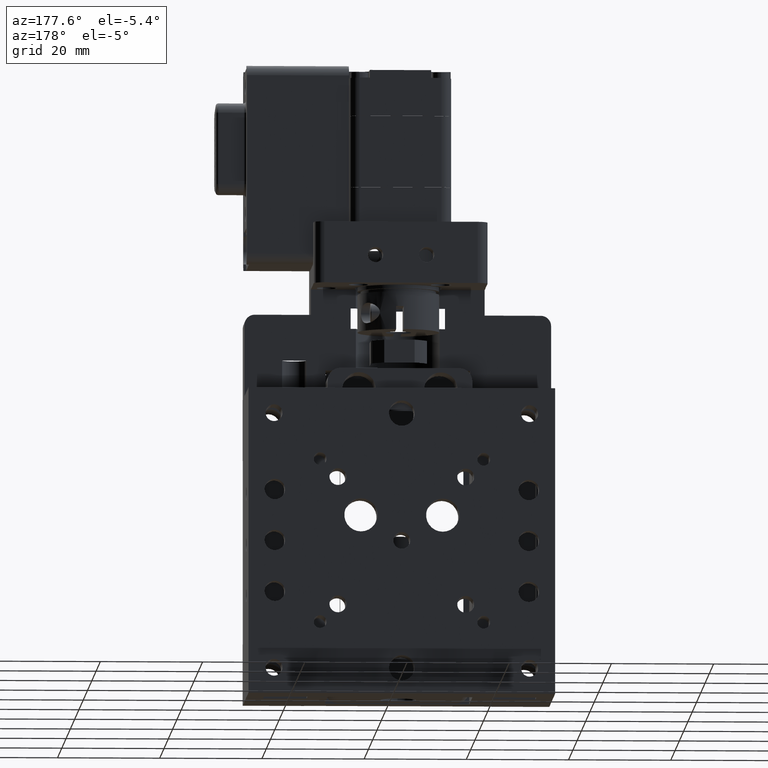
[diagram: clean part render]
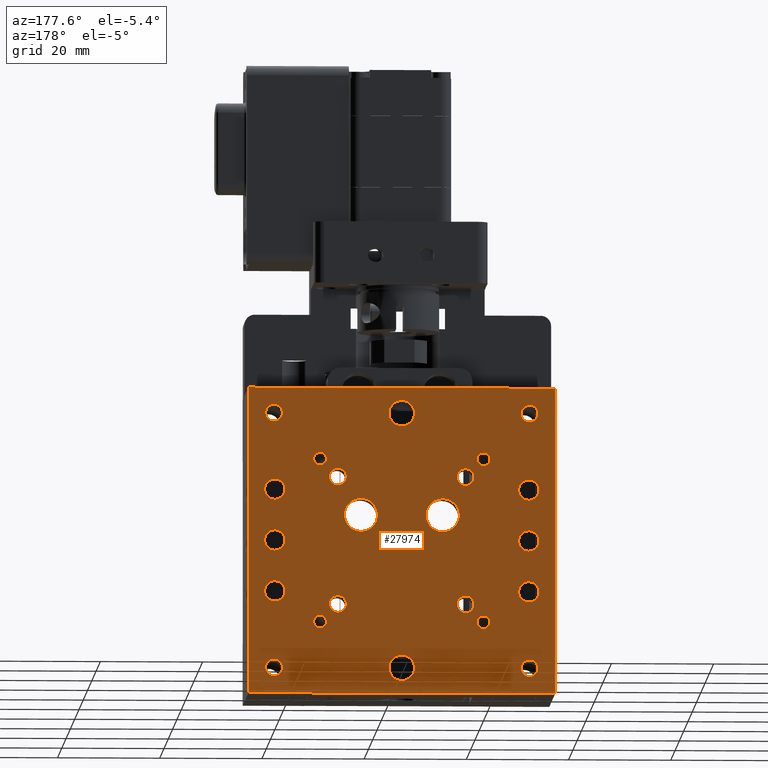
[diagram: same view with one face highlighted and labeled with its STEP entity id]
A machine part, auxiliary view. The second image highlights one B-rep face of the part: STEP entity #27974.
In plain terms, the highlighted planar face has unit normal (0, -1, 0).
Its self-contained STEP definition (entity closure, byte-faithful):
#42 = FACE_BOUND ( 'NONE', #24781, .T. ) ;
#250 = ORIENTED_EDGE ( 'NONE', *, *, #24666, .F. ) ;
#275 = VERTEX_POINT ( 'NONE', #29220 ) ;
#586 = DIRECTION ( 'NONE',  ( 0.0000000000000000000, 0.0000000000000000000, 1.000000000000000000 ) ) ;
#618 = CARTESIAN_POINT ( 'NONE',  ( -27.44171959880754500, 14.10181245401395400, 62.49999999999999300 ) ) ;
#657 = DIRECTION ( 'NONE',  ( 0.0000000000000000000, 0.0000000000000000000, 1.000000000000000000 ) ) ;
#725 = VERTEX_POINT ( 'NONE', #11703 ) ;
#818 = CARTESIAN_POINT ( 'NONE',  ( 9.908280401192477900, 14.10181245401396100, 51.64999999999997700 ) ) ;
#830 = FACE_BOUND ( 'NONE', #17986, .T. ) ;
#890 = CARTESIAN_POINT ( 'NONE',  ( -27.44171959880754500, 14.10181245401395400, 60.50000000000000000 ) ) ;
#987 = VERTEX_POINT ( 'NONE', #30084 ) ;
#1029 = CIRCLE ( 'NONE', #7630, 1.999999999999994900 ) ;
#1058 = ORIENTED_EDGE ( 'NONE', *, *, #32087, .F. ) ;
#1089 = CIRCLE ( 'NONE', #18075, 2.500000000000002200 ) ;
#1184 = EDGE_CURVE ( 'NONE', #1790, #725, #25607, .T. ) ;
#1211 = CARTESIAN_POINT ( 'NONE',  ( 9.908280401192477900, 14.10181245401396100, 48.34999999999999400 ) ) ;
#1388 = AXIS2_PLACEMENT_3D ( 'NONE', #20090, #4738, #22660 ) ;
#1462 = VERTEX_POINT ( 'NONE', #21483 ) ;
#1679 = FACE_BOUND ( 'NONE', #6789, .T. ) ;
#1738 = EDGE_CURVE ( 'NONE', #11139, #18813, #28735, .T. ) ;
#1790 = VERTEX_POINT ( 'NONE', #13770 ) ;
#1911 = DIRECTION ( 'NONE',  ( -1.000000000000000000, -1.156482317317871500E-016, 0.0000000000000000000 ) ) ;
#2009 = DIRECTION ( 'NONE',  ( -0.0000000000000000000, 1.000000000000000000, -0.0000000000000000000 ) ) ;
#2160 = EDGE_CURVE ( 'NONE', #725, #1790, #24310, .T. ) ;
#2200 = VECTOR ( 'NONE', #1911, 1000.000000000000000 ) ;
#2238 = CARTESIAN_POINT ( 'NONE',  ( -27.59171959880753600, 14.10181245401395400, 37.49999999999999300 ) ) ;
#2251 = AXIS2_PLACEMENT_3D ( 'NONE', #3927, #21847, #6535 ) ;
#2493 = FACE_BOUND ( 'NONE', #12200, .T. ) ;
#2575 = CARTESIAN_POINT ( 'NONE',  ( 22.40828040119232900, 14.10181245401396100, 87.50000000000005700 ) ) ;
#2611 = VERTEX_POINT ( 'NONE', #22140 ) ;
#2662 = EDGE_LOOP ( 'NONE', ( #18110, #10220 ) ) ;
#2689 = VERTEX_POINT ( 'NONE', #29743 ) ;
#2891 = DIRECTION ( 'NONE',  ( -0.0000000000000000000, 1.000000000000000000, -0.0000000000000000000 ) ) ;
#3089 = ORIENTED_EDGE ( 'NONE', *, *, #26396, .F. ) ;
#3209 = DIRECTION ( 'NONE',  ( 0.0000000000000000000, 0.0000000000000000000, 1.000000000000000000 ) ) ;
#3305 = DIRECTION ( 'NONE',  ( -0.0000000000000000000, 1.000000000000000000, -0.0000000000000000000 ) ) ;
#3443 = CIRCLE ( 'NONE', #21034, 3.250000000000002700 ) ;
#3541 = DIRECTION ( 'NONE',  ( -0.0000000000000000000, 1.000000000000000000, -0.0000000000000000000 ) ) ;
#3656 = CARTESIAN_POINT ( 'NONE',  ( -27.44171959880754500, 14.10181245401395400, 70.50000000000000000 ) ) ;
#3700 = CIRCLE ( 'NONE', #4108, 2.500000000000002200 ) ;
#3810 = AXIS2_PLACEMENT_3D ( 'NONE', #618, #18583, #3209 ) ;
#3834 = EDGE_CURVE ( 'NONE', #31397, #15848, #22211, .T. ) ;
#3897 = ORIENTED_EDGE ( 'NONE', *, *, #14208, .F. ) ;
#3927 = CARTESIAN_POINT ( 'NONE',  ( 13.40828040119246900, 14.10181245401396000, 78.49999999999998600 ) ) ;
#3953 = EDGE_LOOP ( 'NONE', ( #24756, #18673 ) ) ;
#3992 = CARTESIAN_POINT ( 'NONE',  ( -15.09171959880752400, 14.10181245401395800, 73.34999999999999400 ) ) ;
#4108 = AXIS2_PLACEMENT_3D ( 'NONE', #20084, #4734, #22653 ) ;
#4183 = DIRECTION ( 'NONE',  ( -0.0000000000000000000, 1.000000000000000000, -0.0000000000000000000 ) ) ;
#4399 = LINE ( 'NONE', #8436, #30832 ) ;
#4461 = CIRCLE ( 'NONE', #17149, 3.250000000000002700 ) ;
#4525 = CARTESIAN_POINT ( 'NONE',  ( -27.44171959880754500, 14.10181245401395400, 72.50000000000000000 ) ) ;
#4622 = EDGE_CURVE ( 'NONE', #20340, #16279, #31369, .T. ) ;
#4721 = CARTESIAN_POINT ( 'NONE',  ( 27.40828040119247100, 14.10181245401396100, 92.50000000000000000 ) ) ;
#4734 = DIRECTION ( 'NONE',  ( -0.0000000000000000000, 1.000000000000000000, -0.0000000000000000000 ) ) ;
#4738 = DIRECTION ( 'NONE',  ( -0.0000000000000000000, 1.000000000000000000, -0.0000000000000000000 ) ) ;
#4758 = CARTESIAN_POINT ( 'NONE',  ( -18.59171959880752900, 14.10181245401395600, 78.49999999999998600 ) ) ;
#4765 = CARTESIAN_POINT ( 'NONE',  ( 22.25828040119247600, 14.10181245401396100, 72.50000000000000000 ) ) ;
#4801 = DIRECTION ( 'NONE',  ( 0.0000000000000000000, 0.0000000000000000000, 1.000000000000000000 ) ) ;
#4837 = ORIENTED_EDGE ( 'NONE', *, *, #7867, .F. ) ;
#4857 = EDGE_LOOP ( 'NONE', ( #33028, #14560 ) ) ;
#5162 = DIRECTION ( 'NONE',  ( 0.0000000000000000000, 0.0000000000000000000, 1.000000000000000000 ) ) ;
#5346 = VERTEX_POINT ( 'NONE', #1211 ) ;
#5592 = AXIS2_PLACEMENT_3D ( 'NONE', #2238, #20159, #4801 ) ;
#5990 = DIRECTION ( 'NONE',  ( -0.0000000000000000000, 1.000000000000000000, -0.0000000000000000000 ) ) ;
#6022 = CARTESIAN_POINT ( 'NONE',  ( -27.59171959880753600, 14.10181245401395400, 37.49999999999999300 ) ) ;
#6069 = CARTESIAN_POINT ( 'NONE',  ( -2.591719598807531900, 14.10181245401395800, 87.50000000000000000 ) ) ;
#6072 = FACE_BOUND ( 'NONE', #2662, .T. ) ;
#6295 = CIRCLE ( 'NONE', #33085, 1.649999999999984800 ) ;
#6390 = AXIS2_PLACEMENT_3D ( 'NONE', #26042, #10713, #28594 ) ;
#6421 = CARTESIAN_POINT ( 'NONE',  ( 22.40828040119247400, 14.10181245401396100, 37.50000000000006400 ) ) ;
#6476 = ORIENTED_EDGE ( 'NONE', *, *, #19557, .F. ) ;
#6535 = DIRECTION ( 'NONE',  ( 0.0000000000000000000, 0.0000000000000000000, 1.000000000000000000 ) ) ;
#6647 = AXIS2_PLACEMENT_3D ( 'NONE', #8993, #26884, #11610 ) ;
#6702 = AXIS2_PLACEMENT_3D ( 'NONE', #10133, #28053, #12746 ) ;
#6789 = EDGE_LOOP ( 'NONE', ( #7817, #13097 ) ) ;
#6898 = FACE_BOUND ( 'NONE', #16037, .T. ) ;
#6921 = VERTEX_POINT ( 'NONE', #32409 ) ;
#7084 = ORIENTED_EDGE ( 'NONE', *, *, #31114, .F. ) ;
#7135 = DIRECTION ( 'NONE',  ( -0.0000000000000000000, 1.000000000000000000, -0.0000000000000000000 ) ) ;
#7147 = DIRECTION ( 'NONE',  ( 0.0000000000000000000, 0.0000000000000000000, 1.000000000000000000 ) ) ;
#7324 = ORIENTED_EDGE ( 'NONE', *, *, #20465, .F. ) ;
#7344 = DIRECTION ( 'NONE',  ( 0.0000000000000000000, 0.0000000000000000000, 1.000000000000000000 ) ) ;
#7350 = DIRECTION ( 'NONE',  ( 0.0000000000000000000, 0.0000000000000000000, 1.000000000000000000 ) ) ;
#7369 = CIRCLE ( 'NONE', #1388, 1.649999999999991700 ) ;
#7628 = EDGE_CURVE ( 'NONE', #15848, #27699, #4399, .T. ) ;
#7630 = AXIS2_PLACEMENT_3D ( 'NONE', #21311, #5990, #23897 ) ;
#7673 = FACE_BOUND ( 'NONE', #19466, .T. ) ;
#7731 = CARTESIAN_POINT ( 'NONE',  ( -32.59171959880753600, 14.10181245401395400, 32.49999999999999300 ) ) ;
#7817 = ORIENTED_EDGE ( 'NONE', *, *, #27826, .F. ) ;
#7825 = DIRECTION ( 'NONE',  ( -0.0000000000000000000, 1.000000000000000000, -0.0000000000000000000 ) ) ;
#7867 = EDGE_CURVE ( 'NONE', #12692, #22356, #24850, .T. ) ;
#7875 = ORIENTED_EDGE ( 'NONE', *, *, #30799, .F. ) ;
#7921 = ORIENTED_EDGE ( 'NONE', *, *, #14284, .F. ) ;
#8071 = CARTESIAN_POINT ( 'NONE',  ( 9.908280401192477900, 14.10181245401396100, 76.64999999999996300 ) ) ;
#8160 = EDGE_CURVE ( 'NONE', #11820, #22174, #21581, .T. ) ;
#8354 = CARTESIAN_POINT ( 'NONE',  ( 13.40828040119246900, 14.10181245401396000, 78.49999999999998600 ) ) ;
#8408 = CARTESIAN_POINT ( 'NONE',  ( 9.908280401192477900, 14.10181245401396100, 49.99999999999998600 ) ) ;
#8436 = CARTESIAN_POINT ( 'NONE',  ( -32.59171959880753600, 14.10181245401395400, 92.50000000000000000 ) ) ;
#8457 = VERTEX_POINT ( 'NONE', #3656 ) ;
#8480 = VERTEX_POINT ( 'NONE', #3992 ) ;
#8482 = EDGE_CURVE ( 'NONE', #22174, #11820, #15203, .T. ) ;
#8484 = FACE_BOUND ( 'NONE', #11452, .T. ) ;
#8597 = DIRECTION ( 'NONE',  ( 0.0000000000000000000, 0.0000000000000000000, 1.000000000000000000 ) ) ;
#8661 = DIRECTION ( 'NONE',  ( 0.0000000000000000000, 0.0000000000000000000, 1.000000000000000000 ) ) ;
#8794 = CARTESIAN_POINT ( 'NONE',  ( 9.908280401192477900, 14.10181245401396100, 73.34999999999999400 ) ) ;
#8876 = CARTESIAN_POINT ( 'NONE',  ( -2.591719598807531900, 14.10181245401395800, 37.49999999999999300 ) ) ;
#8993 = CARTESIAN_POINT ( 'NONE',  ( 9.908280401192477900, 14.10181245401396100, 74.99999999999998600 ) ) ;
#8994 = DIRECTION ( 'NONE',  ( 0.0000000000000000000, 0.0000000000000000000, 1.000000000000000000 ) ) ;
#9371 = CARTESIAN_POINT ( 'NONE',  ( -2.591719598807531400, 14.10181245401395800, 84.99999999999998600 ) ) ;
#9633 = DIRECTION ( 'NONE',  ( -0.0000000000000000000, 1.000000000000000000, -0.0000000000000000000 ) ) ;
#9673 = EDGE_CURVE ( 'NONE', #16242, #27699, #22627, .T. ) ;
#9910 = ORIENTED_EDGE ( 'NONE', *, *, #27632, .F. ) ;
#9951 = EDGE_CURVE ( 'NONE', #2611, #21721, #22165, .T. ) ;
#10058 = CIRCLE ( 'NONE', #31709, 1.649999999999998600 ) ;
#10060 = AXIS2_PLACEMENT_3D ( 'NONE', #12976, #30821, #15573 ) ;
#10108 = FACE_BOUND ( 'NONE', #18730, .T. ) ;
#10133 = CARTESIAN_POINT ( 'NONE',  ( -27.44171959880754500, 14.10181245401395400, 52.49999999999999300 ) ) ;
#10220 = ORIENTED_EDGE ( 'NONE', *, *, #1738, .F. ) ;
#10288 = VERTEX_POINT ( 'NONE', #28328 ) ;
#10653 = EDGE_CURVE ( 'NONE', #10931, #23525, #20101, .T. ) ;
#10713 = DIRECTION ( 'NONE',  ( -0.0000000000000000000, 1.000000000000000000, -0.0000000000000000000 ) ) ;
#10853 = CARTESIAN_POINT ( 'NONE',  ( 22.25828040119247600, 14.10181245401396100, 74.50000000000000000 ) ) ;
#10915 = EDGE_LOOP ( 'NONE', ( #22429, #28908 ) ) ;
#10929 = DIRECTION ( 'NONE',  ( 0.0000000000000000000, 0.0000000000000000000, 1.000000000000000000 ) ) ;
#10931 = VERTEX_POINT ( 'NONE', #21329 ) ;
#10993 = DIRECTION ( 'NONE',  ( 0.0000000000000000000, 0.0000000000000000000, 1.000000000000000000 ) ) ;
#10994 = EDGE_LOOP ( 'NONE', ( #7875, #30354 ) ) ;
#11043 = DIRECTION ( 'NONE',  ( -0.0000000000000000000, 1.000000000000000000, -0.0000000000000000000 ) ) ;
#11048 = CARTESIAN_POINT ( 'NONE',  ( -18.59171959880752900, 14.10181245401395600, 45.24999999999999300 ) ) ;
#11139 = VERTEX_POINT ( 'NONE', #16980 ) ;
#11277 = CIRCLE ( 'NONE', #31923, 1.649999999999998600 ) ;
#11279 = ORIENTED_EDGE ( 'NONE', *, *, #9673, .T. ) ;
#11341 = CIRCLE ( 'NONE', #28898, 1.649999999999991700 ) ;
#11452 = EDGE_LOOP ( 'NONE', ( #3089, #250 ) ) ;
#11462 = CARTESIAN_POINT ( 'NONE',  ( -2.591719598807531900, 14.10181245401396000, 62.49999999999999300 ) ) ;
#11469 = DIRECTION ( 'NONE',  ( 0.0000000000000000000, 0.0000000000000000000, 1.000000000000000000 ) ) ;
#11511 = CARTESIAN_POINT ( 'NONE',  ( -10.59171959880753300, 14.10181245401395600, 70.75000000000000000 ) ) ;
#11532 = EDGE_LOOP ( 'NONE', ( #1058, #31496 ) ) ;
#11610 = DIRECTION ( 'NONE',  ( 0.0000000000000000000, 0.0000000000000000000, 1.000000000000000000 ) ) ;
#11684 = CARTESIAN_POINT ( 'NONE',  ( 27.40828040119247100, 14.10181245401396100, 92.50000000000000000 ) ) ;
#11703 = CARTESIAN_POINT ( 'NONE',  ( 22.25828040119247600, 14.10181245401396100, 54.49999999999999300 ) ) ;
#11757 = VECTOR ( 'NONE', #23618, 1000.000000000000000 ) ;
#11781 = CARTESIAN_POINT ( 'NONE',  ( 22.40828040119232900, 14.10181245401396100, 87.50000000000005700 ) ) ;
#11801 = VERTEX_POINT ( 'NONE', #818 ) ;
#11820 = VERTEX_POINT ( 'NONE', #18812 ) ;
#11831 = ORIENTED_EDGE ( 'NONE', *, *, #30626, .T. ) ;
#11993 = EDGE_CURVE ( 'NONE', #17913, #18374, #6295, .T. ) ;
#12153 = EDGE_CURVE ( 'NONE', #16748, #275, #26298, .T. ) ;
#12162 = CARTESIAN_POINT ( 'NONE',  ( -15.09171959880752400, 14.10181245401395800, 74.99999999999998600 ) ) ;
#12180 = VERTEX_POINT ( 'NONE', #15011 ) ;
#12192 = CARTESIAN_POINT ( 'NONE',  ( 22.25828040119247600, 14.10181245401396100, 52.49999999999999300 ) ) ;
#12200 = EDGE_LOOP ( 'NONE', ( #18107, #25539 ) ) ;
#12471 = AXIS2_PLACEMENT_3D ( 'NONE', #17328, #2009, #19918 ) ;
#12599 = CIRCLE ( 'NONE', #16694, 1.999999999999994900 ) ;
#12662 = DIRECTION ( 'NONE',  ( -0.0000000000000000000, 1.000000000000000000, -0.0000000000000000000 ) ) ;
#12692 = VERTEX_POINT ( 'NONE', #30020 ) ;
#12741 = AXIS2_PLACEMENT_3D ( 'NONE', #29930, #14646, #32501 ) ;
#12746 = DIRECTION ( 'NONE',  ( 0.0000000000000000000, 0.0000000000000000000, 1.000000000000000000 ) ) ;
#12749 = VERTEX_POINT ( 'NONE', #32915 ) ;
#12901 = CIRCLE ( 'NONE', #26857, 2.500000000000002200 ) ;
#12931 = FACE_BOUND ( 'NONE', #4857, .T. ) ;
#12961 = DIRECTION ( 'NONE',  ( -0.0000000000000000000, 1.000000000000000000, -0.0000000000000000000 ) ) ;
#12975 = DIRECTION ( 'NONE',  ( -0.0000000000000000000, 1.000000000000000000, -0.0000000000000000000 ) ) ;
#12976 = CARTESIAN_POINT ( 'NONE',  ( -27.59171959880753600, 14.10181245401395400, 87.50000000000000000 ) ) ;
#13008 = CARTESIAN_POINT ( 'NONE',  ( -15.09171959880752400, 14.10181245401395800, 76.64999999999996300 ) ) ;
#13061 = VERTEX_POINT ( 'NONE', #15635 ) ;
#13068 = EDGE_LOOP ( 'NONE', ( #26187, #6476 ) ) ;
#13097 = ORIENTED_EDGE ( 'NONE', *, *, #23845, .F. ) ;
#13131 = CARTESIAN_POINT ( 'NONE',  ( 22.40828040119247400, 14.10181245401396100, 39.15000000000006300 ) ) ;
#13215 = CARTESIAN_POINT ( 'NONE',  ( 9.908280401192477900, 14.10181245401396100, 49.99999999999998600 ) ) ;
#13246 = DIRECTION ( 'NONE',  ( -0.0000000000000000000, 1.000000000000000000, -0.0000000000000000000 ) ) ;
#13556 = DIRECTION ( 'NONE',  ( -0.0000000000000000000, 1.000000000000000000, -0.0000000000000000000 ) ) ;
#13647 = CARTESIAN_POINT ( 'NONE',  ( 13.40828040119246900, 14.10181245401396000, 79.74999999999998600 ) ) ;
#13730 = FACE_BOUND ( 'NONE', #17832, .T. ) ;
#13770 = CARTESIAN_POINT ( 'NONE',  ( 22.25828040119247600, 14.10181245401396100, 50.49999999999998600 ) ) ;
#13884 = CARTESIAN_POINT ( 'NONE',  ( -15.09171959880752400, 14.10181245401395800, 48.34999999999999400 ) ) ;
#14010 = CARTESIAN_POINT ( 'NONE',  ( 13.40828040119246900, 14.10181245401396000, 46.49999999999999300 ) ) ;
#14064 = DIRECTION ( 'NONE',  ( 0.0000000000000000000, 0.0000000000000000000, 1.000000000000000000 ) ) ;
#14155 = EDGE_CURVE ( 'NONE', #28418, #31980, #31765, .T. ) ;
#14159 = PLANE ( 'NONE',  #30320 ) ;
#14208 = EDGE_CURVE ( 'NONE', #19969, #13061, #15007, .T. ) ;
#14230 = EDGE_CURVE ( 'NONE', #32608, #6921, #12599, .T. ) ;
#14269 = DIRECTION ( 'NONE',  ( 1.000000000000000000, 1.156482317317871500E-016, 0.0000000000000000000 ) ) ;
#14284 = EDGE_CURVE ( 'NONE', #20763, #22984, #29752, .T. ) ;
#14367 = DIRECTION ( 'NONE',  ( 0.0000000000000000000, 0.0000000000000000000, 1.000000000000000000 ) ) ;
#14492 = DIRECTION ( 'NONE',  ( -0.0000000000000000000, 1.000000000000000000, -0.0000000000000000000 ) ) ;
#14540 = FACE_BOUND ( 'NONE', #10994, .T. ) ;
#14560 = ORIENTED_EDGE ( 'NONE', *, *, #20100, .F. ) ;
#14646 = DIRECTION ( 'NONE',  ( -0.0000000000000000000, 1.000000000000000000, -0.0000000000000000000 ) ) ;
#14687 = ORIENTED_EDGE ( 'NONE', *, *, #32240, .F. ) ;
#14738 = DIRECTION ( 'NONE',  ( 0.0000000000000000000, 0.0000000000000000000, 1.000000000000000000 ) ) ;
#14764 = ORIENTED_EDGE ( 'NONE', *, *, #31205, .F. ) ;
#14776 = DIRECTION ( 'NONE',  ( 0.0000000000000000000, 0.0000000000000000000, 1.000000000000000000 ) ) ;
#14862 = EDGE_CURVE ( 'NONE', #12180, #10288, #11277, .T. ) ;
#15007 = CIRCLE ( 'NONE', #6390, 3.250000000000002700 ) ;
#15011 = CARTESIAN_POINT ( 'NONE',  ( -27.59171959880753600, 14.10181245401395400, 89.14999999999999100 ) ) ;
#15145 = VERTEX_POINT ( 'NONE', #25105 ) ;
#15148 = AXIS2_PLACEMENT_3D ( 'NONE', #28833, #13556, #31399 ) ;
#15203 = CIRCLE ( 'NONE', #29493, 1.649999999999998600 ) ;
#15249 = CARTESIAN_POINT ( 'NONE',  ( -10.59171959880753300, 14.10181245401395600, 67.49999999999998600 ) ) ;
#15264 = DIRECTION ( 'NONE',  ( -0.0000000000000000000, 1.000000000000000000, -0.0000000000000000000 ) ) ;
#15276 = CIRCLE ( 'NONE', #10060, 1.649999999999998600 ) ;
#15329 = AXIS2_PLACEMENT_3D ( 'NONE', #4525, #22463, #7147 ) ;
#15335 = EDGE_CURVE ( 'NONE', #21721, #2611, #10058, .T. ) ;
#15341 = CARTESIAN_POINT ( 'NONE',  ( -10.59171959880753300, 14.10181245401395600, 64.24999999999998600 ) ) ;
#15353 = FACE_BOUND ( 'NONE', #22278, .T. ) ;
#15463 = EDGE_CURVE ( 'NONE', #8480, #23311, #29248, .T. ) ;
#15573 = DIRECTION ( 'NONE',  ( 0.0000000000000000000, 0.0000000000000000000, 1.000000000000000000 ) ) ;
#15635 = CARTESIAN_POINT ( 'NONE',  ( 5.408280401192471700, 14.10181245401396000, 64.24999999999998600 ) ) ;
#15705 = ORIENTED_EDGE ( 'NONE', *, *, #23065, .F. ) ;
#15777 = DIRECTION ( 'NONE',  ( 0.0000000000000000000, 0.0000000000000000000, 1.000000000000000000 ) ) ;
#15848 = VERTEX_POINT ( 'NONE', #16155 ) ;
#16001 = DIRECTION ( 'NONE',  ( -0.0000000000000000000, 1.000000000000000000, -0.0000000000000000000 ) ) ;
#16037 = EDGE_LOOP ( 'NONE', ( #22076, #29497 ) ) ;
#16072 = DIRECTION ( 'NONE',  ( -0.0000000000000000000, 1.000000000000000000, -0.0000000000000000000 ) ) ;
#16119 = CARTESIAN_POINT ( 'NONE',  ( -27.44171959880754500, 14.10181245401395400, 50.49999999999998600 ) ) ;
#16141 = CARTESIAN_POINT ( 'NONE',  ( -18.59171959880752900, 14.10181245401395600, 79.74999999999998600 ) ) ;
#16155 = CARTESIAN_POINT ( 'NONE',  ( -32.59171959880753600, 14.10181245401395400, 92.50000000000000000 ) ) ;
#16235 = CARTESIAN_POINT ( 'NONE',  ( 27.40828040119247100, 14.10181245401396100, 32.49999999999999300 ) ) ;
#16242 = VERTEX_POINT ( 'NONE', #16235 ) ;
#16279 = VERTEX_POINT ( 'NONE', #13884 ) ;
#16369 = CARTESIAN_POINT ( 'NONE',  ( -27.59171959880753600, 14.10181245401395400, 35.84999999999999400 ) ) ;
#16413 = CARTESIAN_POINT ( 'NONE',  ( 22.25828040119247600, 14.10181245401396100, 64.49999999999998600 ) ) ;
#16454 = AXIS2_PLACEMENT_3D ( 'NONE', #18915, #3541, #21455 ) ;
#16474 = CIRCLE ( 'NONE', #20457, 1.250000000000001100 ) ;
#16547 = CIRCLE ( 'NONE', #18969, 1.649999999999991700 ) ;
#16553 = DIRECTION ( 'NONE',  ( 0.0000000000000000000, 0.0000000000000000000, 1.000000000000000000 ) ) ;
#16565 = AXIS2_PLACEMENT_3D ( 'NONE', #14010, #31854, #16553 ) ;
#16670 = EDGE_CURVE ( 'NONE', #987, #28828, #18674, .T. ) ;
#16694 = AXIS2_PLACEMENT_3D ( 'NONE', #31261, #16001, #586 ) ;
#16748 = VERTEX_POINT ( 'NONE', #10853 ) ;
#16980 = CARTESIAN_POINT ( 'NONE',  ( -18.59171959880752900, 14.10181245401395600, 77.24999999999998600 ) ) ;
#17110 = EDGE_CURVE ( 'NONE', #28188, #8457, #20853, .T. ) ;
#17149 = AXIS2_PLACEMENT_3D ( 'NONE', #29779, #14492, #32360 ) ;
#17328 = CARTESIAN_POINT ( 'NONE',  ( -15.09171959880752400, 14.10181245401395800, 74.99999999999998600 ) ) ;
#17335 = ORIENTED_EDGE ( 'NONE', *, *, #14230, .F. ) ;
#17343 = EDGE_CURVE ( 'NONE', #22356, #12692, #16474, .T. ) ;
#17530 = VERTEX_POINT ( 'NONE', #11511 ) ;
#17640 = CIRCLE ( 'NONE', #30807, 1.649999999999998600 ) ;
#17776 = DIRECTION ( 'NONE',  ( 0.0000000000000000000, 0.0000000000000000000, 1.000000000000000000 ) ) ;
#17832 = EDGE_LOOP ( 'NONE', ( #27849, #22163 ) ) ;
#17913 = VERTEX_POINT ( 'NONE', #8794 ) ;
#17986 = EDGE_LOOP ( 'NONE', ( #15705, #18747 ) ) ;
#18075 = AXIS2_PLACEMENT_3D ( 'NONE', #6069, #23999, #8661 ) ;
#18107 = ORIENTED_EDGE ( 'NONE', *, *, #12153, .F. ) ;
#18110 = ORIENTED_EDGE ( 'NONE', *, *, #32291, .F. ) ;
#18262 = CARTESIAN_POINT ( 'NONE',  ( 13.40828040119246900, 14.10181245401396000, 46.49999999999999300 ) ) ;
#18374 = VERTEX_POINT ( 'NONE', #8071 ) ;
#18567 = CARTESIAN_POINT ( 'NONE',  ( -27.44171959880754500, 14.10181245401395400, 54.49999999999999300 ) ) ;
#18583 = DIRECTION ( 'NONE',  ( -0.0000000000000000000, 1.000000000000000000, -0.0000000000000000000 ) ) ;
#18673 = ORIENTED_EDGE ( 'NONE', *, *, #32351, .F. ) ;
#18674 = CIRCLE ( 'NONE', #29865, 1.250000000000001100 ) ;
#18676 = CARTESIAN_POINT ( 'NONE',  ( 22.40828040119247400, 14.10181245401396100, 37.50000000000006400 ) ) ;
#18697 = ORIENTED_EDGE ( 'NONE', *, *, #7628, .F. ) ;
#18730 = EDGE_LOOP ( 'NONE', ( #29394, #30187 ) ) ;
#18747 = ORIENTED_EDGE ( 'NONE', *, *, #22527, .F. ) ;
#18812 = CARTESIAN_POINT ( 'NONE',  ( 22.40828040119232900, 14.10181245401396100, 89.15000000000006300 ) ) ;
#18813 = VERTEX_POINT ( 'NONE', #16141 ) ;
#18915 = CARTESIAN_POINT ( 'NONE',  ( -2.591719598807531900, 14.10181245401396000, 62.49999999999999300 ) ) ;
#18959 = CIRCLE ( 'NONE', #12741, 2.500000000000002200 ) ;
#18969 = AXIS2_PLACEMENT_3D ( 'NONE', #8408, #26323, #10993 ) ;
#19064 = ORIENTED_EDGE ( 'NONE', *, *, #15463, .F. ) ;
#19071 = EDGE_CURVE ( 'NONE', #27105, #17530, #30575, .T. ) ;
#19437 = ORIENTED_EDGE ( 'NONE', *, *, #11993, .F. ) ;
#19466 = EDGE_LOOP ( 'NONE', ( #3897, #14687 ) ) ;
#19477 = ORIENTED_EDGE ( 'NONE', *, *, #2160, .F. ) ;
#19552 = ORIENTED_EDGE ( 'NONE', *, *, #9951, .F. ) ;
#19557 = EDGE_CURVE ( 'NONE', #16279, #20340, #7369, .T. ) ;
#19578 = CARTESIAN_POINT ( 'NONE',  ( 9.908280401192477900, 14.10181245401396100, 74.99999999999998600 ) ) ;
#19735 = FACE_BOUND ( 'NONE', #11532, .T. ) ;
#19918 = DIRECTION ( 'NONE',  ( 0.0000000000000000000, 0.0000000000000000000, 1.000000000000000000 ) ) ;
#19942 = ORIENTED_EDGE ( 'NONE', *, *, #3834, .F. ) ;
#19969 = VERTEX_POINT ( 'NONE', #27222 ) ;
#20084 = CARTESIAN_POINT ( 'NONE',  ( -2.591719598807531900, 14.10181245401395800, 87.50000000000000000 ) ) ;
#20090 = CARTESIAN_POINT ( 'NONE',  ( -15.09171959880752400, 14.10181245401395800, 49.99999999999998600 ) ) ;
#20100 = EDGE_CURVE ( 'NONE', #25057, #1462, #30030, .T. ) ;
#20101 = CIRCLE ( 'NONE', #5592, 1.649999999999998600 ) ;
#20159 = DIRECTION ( 'NONE',  ( -0.0000000000000000000, 1.000000000000000000, -0.0000000000000000000 ) ) ;
#20227 = EDGE_CURVE ( 'NONE', #23525, #10931, #17640, .T. ) ;
#20340 = VERTEX_POINT ( 'NONE', #21682 ) ;
#20457 = AXIS2_PLACEMENT_3D ( 'NONE', #8354, #26255, #10929 ) ;
#20465 = EDGE_CURVE ( 'NONE', #23311, #8480, #29593, .T. ) ;
#20491 = DIRECTION ( 'NONE',  ( -0.0000000000000000000, 1.000000000000000000, -0.0000000000000000000 ) ) ;
#20499 = FACE_BOUND ( 'NONE', #10915, .T. ) ;
#20650 = EDGE_CURVE ( 'NONE', #10288, #12180, #15276, .T. ) ;
#20663 = CIRCLE ( 'NONE', #31326, 1.250000000000001100 ) ;
#20746 = ORIENTED_EDGE ( 'NONE', *, *, #25017, .F. ) ;
#20763 = VERTEX_POINT ( 'NONE', #28922 ) ;
#20809 = CARTESIAN_POINT ( 'NONE',  ( 27.40828040119247100, 14.10181245401396100, 92.50000000000000000 ) ) ;
#20812 = DIRECTION ( 'NONE',  ( 0.0000000000000000000, 0.0000000000000000000, 1.000000000000000000 ) ) ;
#20853 = CIRCLE ( 'NONE', #21084, 2.000000000000001800 ) ;
#20884 = EDGE_LOOP ( 'NONE', ( #24246, #4837 ) ) ;
#21034 = AXIS2_PLACEMENT_3D ( 'NONE', #22458, #7135, #25045 ) ;
#21084 = AXIS2_PLACEMENT_3D ( 'NONE', #27965, #12662, #30495 ) ;
#21220 = DIRECTION ( 'NONE',  ( 0.0000000000000000000, 0.0000000000000000000, 1.000000000000000000 ) ) ;
#21285 = FACE_BOUND ( 'NONE', #13068, .T. ) ;
#21311 = CARTESIAN_POINT ( 'NONE',  ( 22.25828040119247600, 14.10181245401396100, 62.49999999999999300 ) ) ;
#21329 = CARTESIAN_POINT ( 'NONE',  ( -27.59171959880753600, 14.10181245401395400, 39.14999999999999100 ) ) ;
#21394 = VECTOR ( 'NONE', #28531, 1000.000000000000000 ) ;
#21455 = DIRECTION ( 'NONE',  ( 0.0000000000000000000, 0.0000000000000000000, 1.000000000000000000 ) ) ;
#21483 = CARTESIAN_POINT ( 'NONE',  ( -18.59171959880752900, 14.10181245401395600, 47.74999999999999300 ) ) ;
#21581 = CIRCLE ( 'NONE', #30748, 1.649999999999998600 ) ;
#21682 = CARTESIAN_POINT ( 'NONE',  ( -15.09171959880752400, 14.10181245401395800, 51.64999999999997700 ) ) ;
#21721 = VERTEX_POINT ( 'NONE', #13131 ) ;
#21847 = DIRECTION ( 'NONE',  ( -0.0000000000000000000, 1.000000000000000000, -0.0000000000000000000 ) ) ;
#22076 = ORIENTED_EDGE ( 'NONE', *, *, #8160, .F. ) ;
#22100 = FACE_BOUND ( 'NONE', #25894, .T. ) ;
#22117 = DIRECTION ( 'NONE',  ( 0.0000000000000000000, 0.0000000000000000000, 1.000000000000000000 ) ) ;
#22140 = CARTESIAN_POINT ( 'NONE',  ( 22.40828040119247400, 14.10181245401396100, 35.85000000000006500 ) ) ;
#22163 = ORIENTED_EDGE ( 'NONE', *, *, #20650, .F. ) ;
#22165 = CIRCLE ( 'NONE', #28728, 1.649999999999998600 ) ;
#22174 = VERTEX_POINT ( 'NONE', #25616 ) ;
#22211 = LINE ( 'NONE', #20809, #21394 ) ;
#22278 = EDGE_LOOP ( 'NONE', ( #19477, #27288 ) ) ;
#22320 = CARTESIAN_POINT ( 'NONE',  ( 13.40828040119246900, 14.10181245401396000, 47.74999999999999300 ) ) ;
#22356 = VERTEX_POINT ( 'NONE', #13647 ) ;
#22429 = ORIENTED_EDGE ( 'NONE', *, *, #10653, .F. ) ;
#22458 = CARTESIAN_POINT ( 'NONE',  ( 5.408280401192471700, 14.10181245401396000, 67.49999999999998600 ) ) ;
#22463 = DIRECTION ( 'NONE',  ( -0.0000000000000000000, 1.000000000000000000, -0.0000000000000000000 ) ) ;
#22527 = EDGE_CURVE ( 'NONE', #26247, #2689, #18959, .T. ) ;
#22627 = LINE ( 'NONE', #32658, #2200 ) ;
#22653 = DIRECTION ( 'NONE',  ( 0.0000000000000000000, 0.0000000000000000000, 1.000000000000000000 ) ) ;
#22660 = DIRECTION ( 'NONE',  ( 0.0000000000000000000, 0.0000000000000000000, 1.000000000000000000 ) ) ;
#22679 = DIRECTION ( 'NONE',  ( -0.0000000000000000000, 1.000000000000000000, -0.0000000000000000000 ) ) ;
#22685 = DIRECTION ( 'NONE',  ( -0.0000000000000000000, 1.000000000000000000, -0.0000000000000000000 ) ) ;
#22917 = FACE_BOUND ( 'NONE', #3953, .T. ) ;
#22984 = VERTEX_POINT ( 'NONE', #16413 ) ;
#23065 = EDGE_CURVE ( 'NONE', #2689, #26247, #12901, .T. ) ;
#23164 = CARTESIAN_POINT ( 'NONE',  ( -18.59171959880752900, 14.10181245401395600, 46.49999999999999300 ) ) ;
#23311 = VERTEX_POINT ( 'NONE', #13008 ) ;
#23411 = ORIENTED_EDGE ( 'NONE', *, *, #32605, .F. ) ;
#23525 = VERTEX_POINT ( 'NONE', #16369 ) ;
#23529 = CIRCLE ( 'NONE', #16454, 1.649999999999991700 ) ;
#23618 = DIRECTION ( 'NONE',  ( -0.0000000000000000000, -0.0000000000000000000, -1.000000000000000000 ) ) ;
#23845 = EDGE_CURVE ( 'NONE', #5346, #11801, #29675, .T. ) ;
#23860 = EDGE_LOOP ( 'NONE', ( #7324, #19064 ) ) ;
#23897 = DIRECTION ( 'NONE',  ( 0.0000000000000000000, 0.0000000000000000000, 1.000000000000000000 ) ) ;
#23940 = DIRECTION ( 'NONE',  ( -0.0000000000000000000, 1.000000000000000000, -0.0000000000000000000 ) ) ;
#23999 = DIRECTION ( 'NONE',  ( -0.0000000000000000000, 1.000000000000000000, -0.0000000000000000000 ) ) ;
#24246 = ORIENTED_EDGE ( 'NONE', *, *, #17343, .F. ) ;
#24278 = VERTEX_POINT ( 'NONE', #32568 ) ;
#24310 = CIRCLE ( 'NONE', #29243, 2.000000000000001800 ) ;
#24343 = CIRCLE ( 'NONE', #31207, 2.000000000000001800 ) ;
#24347 = DIRECTION ( 'NONE',  ( -0.0000000000000000000, 1.000000000000000000, -0.0000000000000000000 ) ) ;
#24666 = EDGE_CURVE ( 'NONE', #24278, #12749, #23529, .T. ) ;
#24756 = ORIENTED_EDGE ( 'NONE', *, *, #14155, .F. ) ;
#24760 = ORIENTED_EDGE ( 'NONE', *, *, #15335, .F. ) ;
#24781 = EDGE_LOOP ( 'NONE', ( #24760, #19552 ) ) ;
#24850 = CIRCLE ( 'NONE', #2251, 1.250000000000001100 ) ;
#24858 = EDGE_CURVE ( 'NONE', #275, #16748, #24343, .T. ) ;
#24946 = CARTESIAN_POINT ( 'NONE',  ( -15.09171959880752400, 14.10181245401395800, 49.99999999999998600 ) ) ;
#25017 = EDGE_CURVE ( 'NONE', #22984, #20763, #1029, .T. ) ;
#25045 = DIRECTION ( 'NONE',  ( 0.0000000000000000000, 0.0000000000000000000, 1.000000000000000000 ) ) ;
#25057 = VERTEX_POINT ( 'NONE', #11048 ) ;
#25105 = CARTESIAN_POINT ( 'NONE',  ( -2.591719598807531900, 14.10181245401395800, 90.00000000000000000 ) ) ;
#25239 = VERTEX_POINT ( 'NONE', #9371 ) ;
#25413 = AXIS2_PLACEMENT_3D ( 'NONE', #13215, #31060, #15777 ) ;
#25539 = ORIENTED_EDGE ( 'NONE', *, *, #24858, .F. ) ;
#25607 = CIRCLE ( 'NONE', #31335, 2.000000000000001800 ) ;
#25616 = CARTESIAN_POINT ( 'NONE',  ( 22.40828040119232900, 14.10181245401396100, 85.85000000000006500 ) ) ;
#25717 = FACE_BOUND ( 'NONE', #28566, .T. ) ;
#25753 = DIRECTION ( 'NONE',  ( 0.0000000000000000000, 0.0000000000000000000, 1.000000000000000000 ) ) ;
#25894 = EDGE_LOOP ( 'NONE', ( #20746, #7921 ) ) ;
#25907 = AXIS2_PLACEMENT_3D ( 'NONE', #28273, #12975, #30819 ) ;
#25927 = CIRCLE ( 'NONE', #16565, 1.250000000000001100 ) ;
#26042 = CARTESIAN_POINT ( 'NONE',  ( 5.408280401192471700, 14.10181245401396000, 67.49999999999998600 ) ) ;
#26187 = ORIENTED_EDGE ( 'NONE', *, *, #4622, .F. ) ;
#26247 = VERTEX_POINT ( 'NONE', #29402 ) ;
#26255 = DIRECTION ( 'NONE',  ( -0.0000000000000000000, 1.000000000000000000, -0.0000000000000000000 ) ) ;
#26298 = CIRCLE ( 'NONE', #30719, 2.000000000000001800 ) ;
#26323 = DIRECTION ( 'NONE',  ( -0.0000000000000000000, 1.000000000000000000, -0.0000000000000000000 ) ) ;
#26371 = CARTESIAN_POINT ( 'NONE',  ( 22.25828040119247600, 14.10181245401396100, 62.49999999999999300 ) ) ;
#26396 = EDGE_CURVE ( 'NONE', #12749, #24278, #11341, .T. ) ;
#26507 = FACE_BOUND ( 'NONE', #20884, .T. ) ;
#26542 = AXIS2_PLACEMENT_3D ( 'NONE', #24946, #9633, #27509 ) ;
#26634 = EDGE_LOOP ( 'NONE', ( #9910, #23411 ) ) ;
#26779 = DIRECTION ( 'NONE',  ( -0.0000000000000000000, 1.000000000000000000, -0.0000000000000000000 ) ) ;
#26857 = AXIS2_PLACEMENT_3D ( 'NONE', #8876, #26779, #11469 ) ;
#26884 = DIRECTION ( 'NONE',  ( -0.0000000000000000000, 1.000000000000000000, -0.0000000000000000000 ) ) ;
#26942 = EDGE_CURVE ( 'NONE', #8457, #28188, #33043, .T. ) ;
#26968 = AXIS2_PLACEMENT_3D ( 'NONE', #26371, #11043, #28920 ) ;
#27105 = VERTEX_POINT ( 'NONE', #15341 ) ;
#27222 = CARTESIAN_POINT ( 'NONE',  ( 5.408280401192471700, 14.10181245401396000, 70.75000000000000000 ) ) ;
#27288 = ORIENTED_EDGE ( 'NONE', *, *, #1184, .F. ) ;
#27311 = FACE_BOUND ( 'NONE', #26634, .T. ) ;
#27509 = DIRECTION ( 'NONE',  ( 0.0000000000000000000, 0.0000000000000000000, 1.000000000000000000 ) ) ;
#27632 = EDGE_CURVE ( 'NONE', #15145, #25239, #3700, .T. ) ;
#27699 = VERTEX_POINT ( 'NONE', #7731 ) ;
#27826 = EDGE_CURVE ( 'NONE', #11801, #5346, #16547, .T. ) ;
#27849 = ORIENTED_EDGE ( 'NONE', *, *, #14862, .F. ) ;
#27965 = CARTESIAN_POINT ( 'NONE',  ( -27.44171959880754500, 14.10181245401395400, 72.50000000000000000 ) ) ;
#27974 = ADVANCED_FACE ( 'NONE', ( #22917, #28906, #10108, #2493, #22100, #15353, #8484, #1679, #28111, #21285, #14540, #7673, #830, #27311, #20499, #13730, #6898, #42, #26507, #19735, #12931, #6072, #32507, #25717 ), #14159, .F. ) ;
#28053 = DIRECTION ( 'NONE',  ( -0.0000000000000000000, 1.000000000000000000, -0.0000000000000000000 ) ) ;
#28111 = FACE_BOUND ( 'NONE', #23860, .T. ) ;
#28188 = VERTEX_POINT ( 'NONE', #33100 ) ;
#28253 = CARTESIAN_POINT ( 'NONE',  ( -18.59171959880752900, 14.10181245401395600, 46.49999999999999300 ) ) ;
#28266 = EDGE_LOOP ( 'NONE', ( #11831, #11279, #18697, #19942 ) ) ;
#28273 = CARTESIAN_POINT ( 'NONE',  ( -27.44171959880754500, 14.10181245401395400, 52.49999999999999300 ) ) ;
#28328 = CARTESIAN_POINT ( 'NONE',  ( -27.59171959880753600, 14.10181245401395400, 85.84999999999999400 ) ) ;
#28418 = VERTEX_POINT ( 'NONE', #18567 ) ;
#28477 = CIRCLE ( 'NONE', #3810, 1.999999999999994900 ) ;
#28531 = DIRECTION ( 'NONE',  ( -1.000000000000000000, -1.156482317317871500E-016, 0.0000000000000000000 ) ) ;
#28538 = CARTESIAN_POINT ( 'NONE',  ( 22.25828040119247600, 14.10181245401396100, 52.49999999999999300 ) ) ;
#28566 = EDGE_LOOP ( 'NONE', ( #14764, #19437 ) ) ;
#28594 = DIRECTION ( 'NONE',  ( 0.0000000000000000000, 0.0000000000000000000, 1.000000000000000000 ) ) ;
#28709 = EDGE_LOOP ( 'NONE', ( #7084, #17335 ) ) ;
#28728 = AXIS2_PLACEMENT_3D ( 'NONE', #18676, #3305, #21220 ) ;
#28735 = CIRCLE ( 'NONE', #15148, 1.250000000000001100 ) ;
#28828 = VERTEX_POINT ( 'NONE', #22320 ) ;
#28833 = CARTESIAN_POINT ( 'NONE',  ( -18.59171959880752900, 14.10181245401395600, 78.49999999999998600 ) ) ;
#28887 = AXIS2_PLACEMENT_3D ( 'NONE', #28253, #12961, #30809 ) ;
#28898 = AXIS2_PLACEMENT_3D ( 'NONE', #11462, #29321, #14064 ) ;
#28906 = FACE_BOUND ( 'NONE', #28709, .T. ) ;
#28908 = ORIENTED_EDGE ( 'NONE', *, *, #20227, .F. ) ;
#28920 = DIRECTION ( 'NONE',  ( 0.0000000000000000000, 0.0000000000000000000, 1.000000000000000000 ) ) ;
#28922 = CARTESIAN_POINT ( 'NONE',  ( 22.25828040119247600, 14.10181245401396100, 60.50000000000000000 ) ) ;
#29220 = CARTESIAN_POINT ( 'NONE',  ( 22.25828040119247600, 14.10181245401396100, 70.50000000000000000 ) ) ;
#29243 = AXIS2_PLACEMENT_3D ( 'NONE', #12192, #30041, #14776 ) ;
#29248 = CIRCLE ( 'NONE', #29356, 1.649999999999984800 ) ;
#29321 = DIRECTION ( 'NONE',  ( -0.0000000000000000000, 1.000000000000000000, -0.0000000000000000000 ) ) ;
#29356 = AXIS2_PLACEMENT_3D ( 'NONE', #12162, #30009, #14738 ) ;
#29394 = ORIENTED_EDGE ( 'NONE', *, *, #17110, .F. ) ;
#29402 = CARTESIAN_POINT ( 'NONE',  ( -2.591719598807531400, 14.10181245401395800, 34.99999999999999300 ) ) ;
#29493 = AXIS2_PLACEMENT_3D ( 'NONE', #11781, #29651, #14367 ) ;
#29497 = ORIENTED_EDGE ( 'NONE', *, *, #8482, .F. ) ;
#29553 = DIRECTION ( 'NONE',  ( 1.156482317317871500E-016, -1.000000000000000000, 0.0000000000000000000 ) ) ;
#29593 = CIRCLE ( 'NONE', #12471, 1.649999999999984800 ) ;
#29651 = DIRECTION ( 'NONE',  ( -0.0000000000000000000, 1.000000000000000000, -0.0000000000000000000 ) ) ;
#29675 = CIRCLE ( 'NONE', #25413, 1.649999999999991700 ) ;
#29743 = CARTESIAN_POINT ( 'NONE',  ( -2.591719598807531900, 14.10181245401395800, 39.99999999999999300 ) ) ;
#29752 = CIRCLE ( 'NONE', #26968, 1.999999999999994900 ) ;
#29779 = CARTESIAN_POINT ( 'NONE',  ( -10.59171959880753300, 14.10181245401395600, 67.49999999999998600 ) ) ;
#29865 = AXIS2_PLACEMENT_3D ( 'NONE', #18262, #2891, #20812 ) ;
#29930 = CARTESIAN_POINT ( 'NONE',  ( -2.591719598807531900, 14.10181245401395800, 37.49999999999999300 ) ) ;
#29942 = EDGE_CURVE ( 'NONE', #1462, #25057, #32222, .T. ) ;
#30009 = DIRECTION ( 'NONE',  ( -0.0000000000000000000, 1.000000000000000000, -0.0000000000000000000 ) ) ;
#30020 = CARTESIAN_POINT ( 'NONE',  ( 13.40828040119246900, 14.10181245401396000, 77.24999999999998600 ) ) ;
#30030 = CIRCLE ( 'NONE', #32730, 1.250000000000001100 ) ;
#30041 = DIRECTION ( 'NONE',  ( -0.0000000000000000000, 1.000000000000000000, -0.0000000000000000000 ) ) ;
#30084 = CARTESIAN_POINT ( 'NONE',  ( 13.40828040119246900, 14.10181245401396000, 45.24999999999999300 ) ) ;
#30187 = ORIENTED_EDGE ( 'NONE', *, *, #26942, .F. ) ;
#30268 = CIRCLE ( 'NONE', #6702, 2.000000000000001800 ) ;
#30320 = AXIS2_PLACEMENT_3D ( 'NONE', #11684, #29553, #14269 ) ;
#30354 = ORIENTED_EDGE ( 'NONE', *, *, #19071, .F. ) ;
#30495 = DIRECTION ( 'NONE',  ( 0.0000000000000000000, 0.0000000000000000000, 1.000000000000000000 ) ) ;
#30500 = CARTESIAN_POINT ( 'NONE',  ( 22.25828040119247600, 14.10181245401396100, 72.50000000000000000 ) ) ;
#30575 = CIRCLE ( 'NONE', #33116, 3.250000000000002700 ) ;
#30626 = EDGE_CURVE ( 'NONE', #31397, #16242, #32133, .T. ) ;
#30719 = AXIS2_PLACEMENT_3D ( 'NONE', #4765, #22685, #7350 ) ;
#30748 = AXIS2_PLACEMENT_3D ( 'NONE', #2575, #20491, #5162 ) ;
#30799 = EDGE_CURVE ( 'NONE', #17530, #27105, #4461, .T. ) ;
#30807 = AXIS2_PLACEMENT_3D ( 'NONE', #6022, #23940, #8597 ) ;
#30809 = DIRECTION ( 'NONE',  ( 0.0000000000000000000, 0.0000000000000000000, 1.000000000000000000 ) ) ;
#30819 = DIRECTION ( 'NONE',  ( 0.0000000000000000000, 0.0000000000000000000, 1.000000000000000000 ) ) ;
#30821 = DIRECTION ( 'NONE',  ( -0.0000000000000000000, 1.000000000000000000, -0.0000000000000000000 ) ) ;
#30832 = VECTOR ( 'NONE', #31484, 1000.000000000000000 ) ;
#31060 = DIRECTION ( 'NONE',  ( -0.0000000000000000000, 1.000000000000000000, -0.0000000000000000000 ) ) ;
#31098 = DIRECTION ( 'NONE',  ( 0.0000000000000000000, 0.0000000000000000000, 1.000000000000000000 ) ) ;
#31114 = EDGE_CURVE ( 'NONE', #6921, #32608, #28477, .T. ) ;
#31205 = EDGE_CURVE ( 'NONE', #18374, #17913, #33245, .T. ) ;
#31207 = AXIS2_PLACEMENT_3D ( 'NONE', #30500, #15264, #33081 ) ;
#31261 = CARTESIAN_POINT ( 'NONE',  ( -27.44171959880754500, 14.10181245401395400, 62.49999999999999300 ) ) ;
#31326 = AXIS2_PLACEMENT_3D ( 'NONE', #4758, #22679, #7344 ) ;
#31335 = AXIS2_PLACEMENT_3D ( 'NONE', #28538, #13246, #31098 ) ;
#31339 = CARTESIAN_POINT ( 'NONE',  ( -27.59171959880753600, 14.10181245401395400, 87.50000000000000000 ) ) ;
#31369 = CIRCLE ( 'NONE', #26542, 1.649999999999991700 ) ;
#31397 = VERTEX_POINT ( 'NONE', #4721 ) ;
#31399 = DIRECTION ( 'NONE',  ( 0.0000000000000000000, 0.0000000000000000000, 1.000000000000000000 ) ) ;
#31465 = CARTESIAN_POINT ( 'NONE',  ( 27.40828040119247100, 14.10181245401396100, 92.50000000000000000 ) ) ;
#31484 = DIRECTION ( 'NONE',  ( -0.0000000000000000000, -0.0000000000000000000, -1.000000000000000000 ) ) ;
#31496 = ORIENTED_EDGE ( 'NONE', *, *, #16670, .F. ) ;
#31709 = AXIS2_PLACEMENT_3D ( 'NONE', #6421, #24347, #8994 ) ;
#31765 = CIRCLE ( 'NONE', #25907, 2.000000000000001800 ) ;
#31854 = DIRECTION ( 'NONE',  ( -0.0000000000000000000, 1.000000000000000000, -0.0000000000000000000 ) ) ;
#31923 = AXIS2_PLACEMENT_3D ( 'NONE', #31339, #16072, #657 ) ;
#31980 = VERTEX_POINT ( 'NONE', #16119 ) ;
#32087 = EDGE_CURVE ( 'NONE', #28828, #987, #25927, .T. ) ;
#32133 = LINE ( 'NONE', #31465, #11757 ) ;
#32222 = CIRCLE ( 'NONE', #28887, 1.250000000000001100 ) ;
#32240 = EDGE_CURVE ( 'NONE', #13061, #19969, #3443, .T. ) ;
#32291 = EDGE_CURVE ( 'NONE', #18813, #11139, #20663, .T. ) ;
#32351 = EDGE_CURVE ( 'NONE', #31980, #28418, #30268, .T. ) ;
#32360 = DIRECTION ( 'NONE',  ( 0.0000000000000000000, 0.0000000000000000000, 1.000000000000000000 ) ) ;
#32409 = CARTESIAN_POINT ( 'NONE',  ( -27.44171959880754500, 14.10181245401395400, 64.49999999999998600 ) ) ;
#32501 = DIRECTION ( 'NONE',  ( 0.0000000000000000000, 0.0000000000000000000, 1.000000000000000000 ) ) ;
#32507 = FACE_OUTER_BOUND ( 'NONE', #28266, .T. ) ;
#32568 = CARTESIAN_POINT ( 'NONE',  ( -2.591719598807531900, 14.10181245401396000, 60.85000000000000100 ) ) ;
#32605 = EDGE_CURVE ( 'NONE', #25239, #15145, #1089, .T. ) ;
#32608 = VERTEX_POINT ( 'NONE', #890 ) ;
#32658 = CARTESIAN_POINT ( 'NONE',  ( 27.40828040119247100, 14.10181245401396100, 32.49999999999999300 ) ) ;
#32730 = AXIS2_PLACEMENT_3D ( 'NONE', #23164, #7825, #25753 ) ;
#32915 = CARTESIAN_POINT ( 'NONE',  ( -2.591719598807531900, 14.10181245401396000, 64.14999999999999100 ) ) ;
#33028 = ORIENTED_EDGE ( 'NONE', *, *, #29942, .F. ) ;
#33043 = CIRCLE ( 'NONE', #15329, 2.000000000000001800 ) ;
#33070 = DIRECTION ( 'NONE',  ( -0.0000000000000000000, 1.000000000000000000, -0.0000000000000000000 ) ) ;
#33081 = DIRECTION ( 'NONE',  ( 0.0000000000000000000, 0.0000000000000000000, 1.000000000000000000 ) ) ;
#33085 = AXIS2_PLACEMENT_3D ( 'NONE', #19578, #4183, #22117 ) ;
#33100 = CARTESIAN_POINT ( 'NONE',  ( -27.44171959880754500, 14.10181245401395400, 74.50000000000000000 ) ) ;
#33116 = AXIS2_PLACEMENT_3D ( 'NONE', #15249, #33070, #17776 ) ;
#33245 = CIRCLE ( 'NONE', #6647, 1.649999999999984800 ) ;